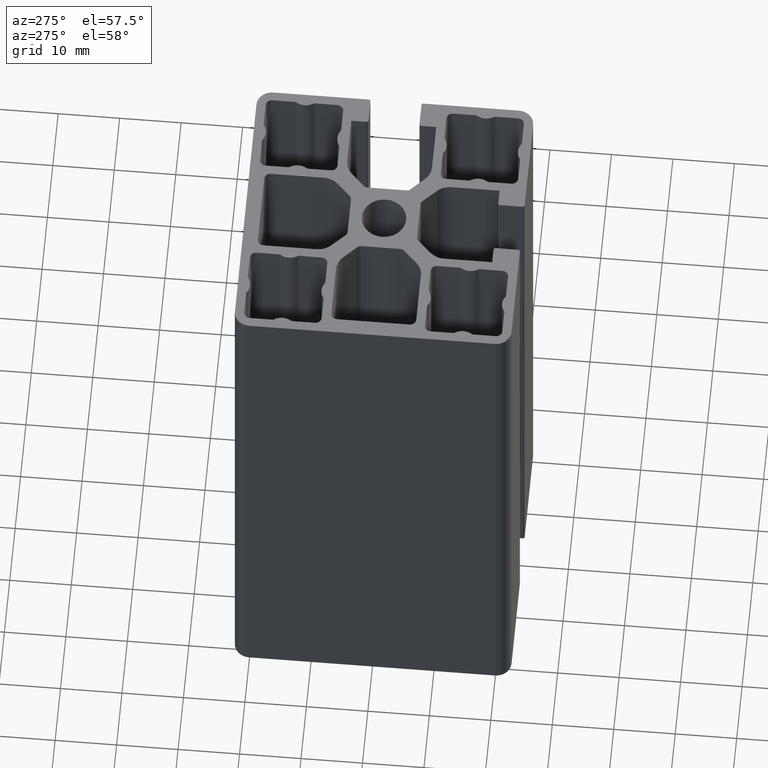
[diagram: clean part render]
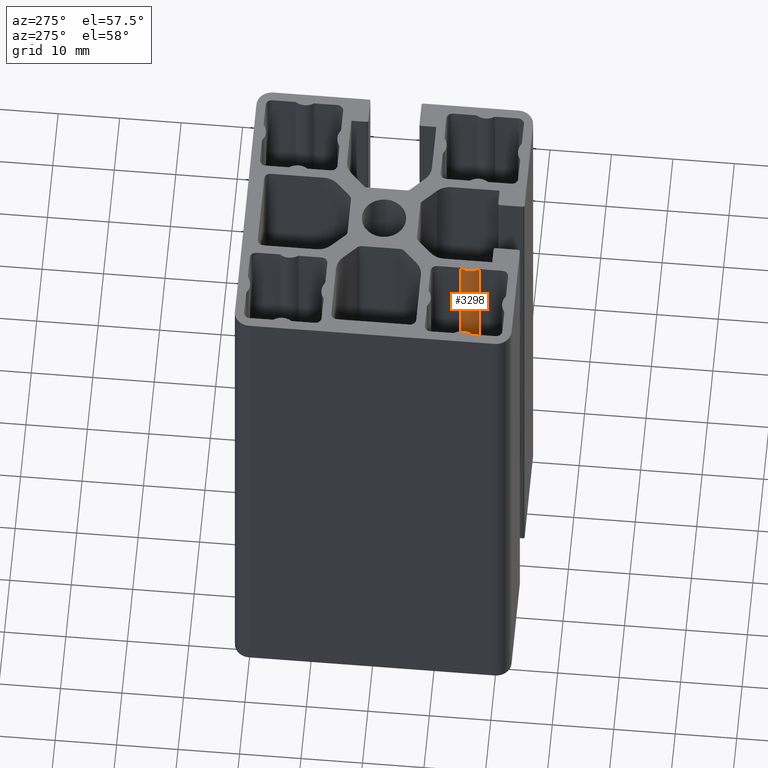
[diagram: same view with one face highlighted and labeled with its STEP entity id]
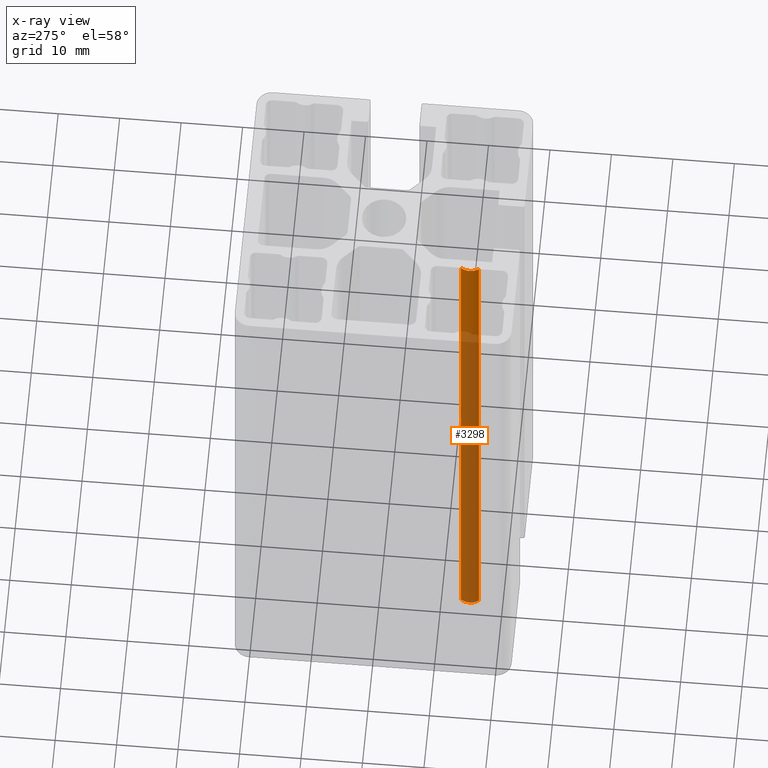
[diagram: x-ray of the same camera — body ghosted, the highlighted face saturated]
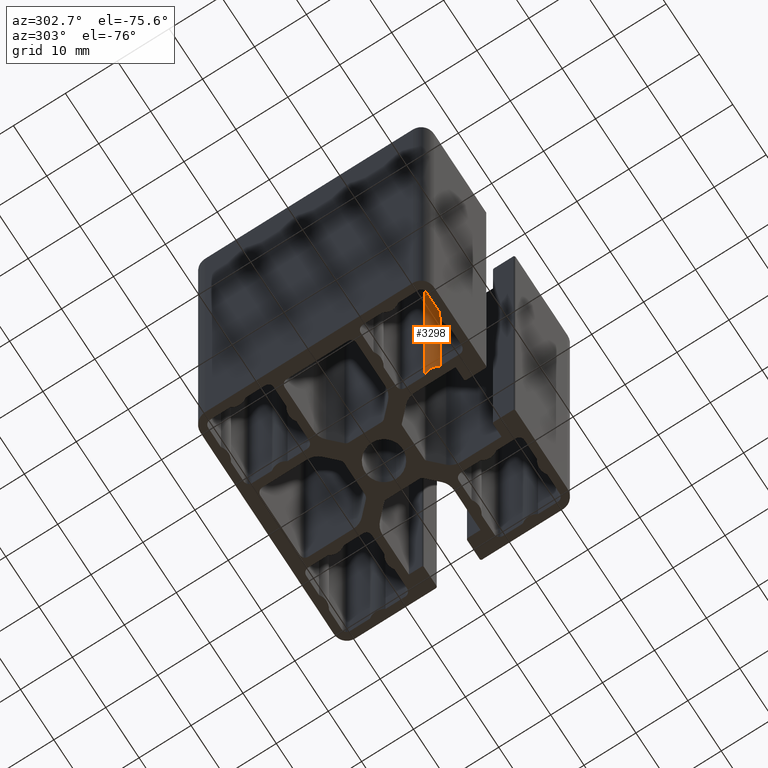
[diagram: same view with one face highlighted and labeled with its STEP entity id]
A machine part, auxiliary view. The second image highlights one B-rep face of the part: STEP entity #3298.
The next image is the same camera in x-ray: the body ghosted, the highlighted face saturated — about 81% of this face is hidden behind the body in this view.
A second angle (auxiliary view) of the same face is appended — the face is thin or edge-on in the first view.
In plain terms, the highlighted cylindrical surface (edge-blend (fillet) strip) has radius 2.5 mm, axis along (0, 0, 1).
Its self-contained STEP definition (entity closure, byte-faithful):
#204=CIRCLE('',#3642,2.49999999999002);
#205=CIRCLE('',#3643,2.49999999999002);
#311=CYLINDRICAL_SURFACE('',#3641,2.49999999999002);
#467=FACE_OUTER_BOUND('',#635,.T.);
#635=EDGE_LOOP('',(#2676,#2677,#2678,#2679));
#935=LINE('',#5589,#1235);
#936=LINE('',#5595,#1236);
#1235=VECTOR('',#4587,100.);
#1236=VECTOR('',#4594,100.);
#1566=VERTEX_POINT('',#5586);
#1567=VERTEX_POINT('',#5588);
#1568=VERTEX_POINT('',#5592);
#1569=VERTEX_POINT('',#5594);
#2038=EDGE_CURVE('',#1567,#1566,#935,.T.);
#2040=EDGE_CURVE('',#1568,#1566,#204,.T.);
#2041=EDGE_CURVE('',#1569,#1568,#936,.T.);
#2042=EDGE_CURVE('',#1567,#1569,#205,.T.);
#2676=ORIENTED_EDGE('',*,*,#2040,.F.);
#2677=ORIENTED_EDGE('',*,*,#2041,.F.);
#2678=ORIENTED_EDGE('',*,*,#2042,.F.);
#2679=ORIENTED_EDGE('',*,*,#2038,.T.);
#3298=ADVANCED_FACE('',(#467),#311,.T.);
#3641=AXIS2_PLACEMENT_3D('',#5591,#4590,#4591);
#3642=AXIS2_PLACEMENT_3D('',#5593,#4592,#4593);
#3643=AXIS2_PLACEMENT_3D('',#5596,#4595,#4596);
#4587=DIRECTION('',(0.,0.,1.));
#4590=DIRECTION('center_axis',(0.,0.,1.));
#4591=DIRECTION('ref_axis',(0.807692307695562,-0.589604219870769,0.));
#4592=DIRECTION('center_axis',(0.,0.,1.));
#4593=DIRECTION('ref_axis',(0.807692307695562,-0.589604219870769,0.));
#4594=DIRECTION('',(0.,0.,1.));
#4595=DIRECTION('center_axis',(0.,0.,-1.));
#4596=DIRECTION('ref_axis',(0.807692307695562,-0.589604219870769,0.));
#5586=CARTESIAN_POINT('',(-8.41923076923046,-16.1740105496716,100.));
#5588=CARTESIAN_POINT('',(-8.41923076923046,-16.1740105496716,0.));
#5589=CARTESIAN_POINT('',(-8.41923076923046,-16.1740105496716,0.));
#5591=CARTESIAN_POINT('Origin',(-6.40000000000001,-14.7,0.));
#5592=CARTESIAN_POINT('',(-8.41923076923085,-13.2259894503289,100.));
#5593=CARTESIAN_POINT('Origin',(-6.40000000000001,-14.7,100.));
#5594=CARTESIAN_POINT('',(-8.41923076923085,-13.2259894503289,0.));
#5595=CARTESIAN_POINT('',(-8.41923076923085,-13.2259894503289,0.));
#5596=CARTESIAN_POINT('Origin',(-6.40000000000001,-14.7,0.));